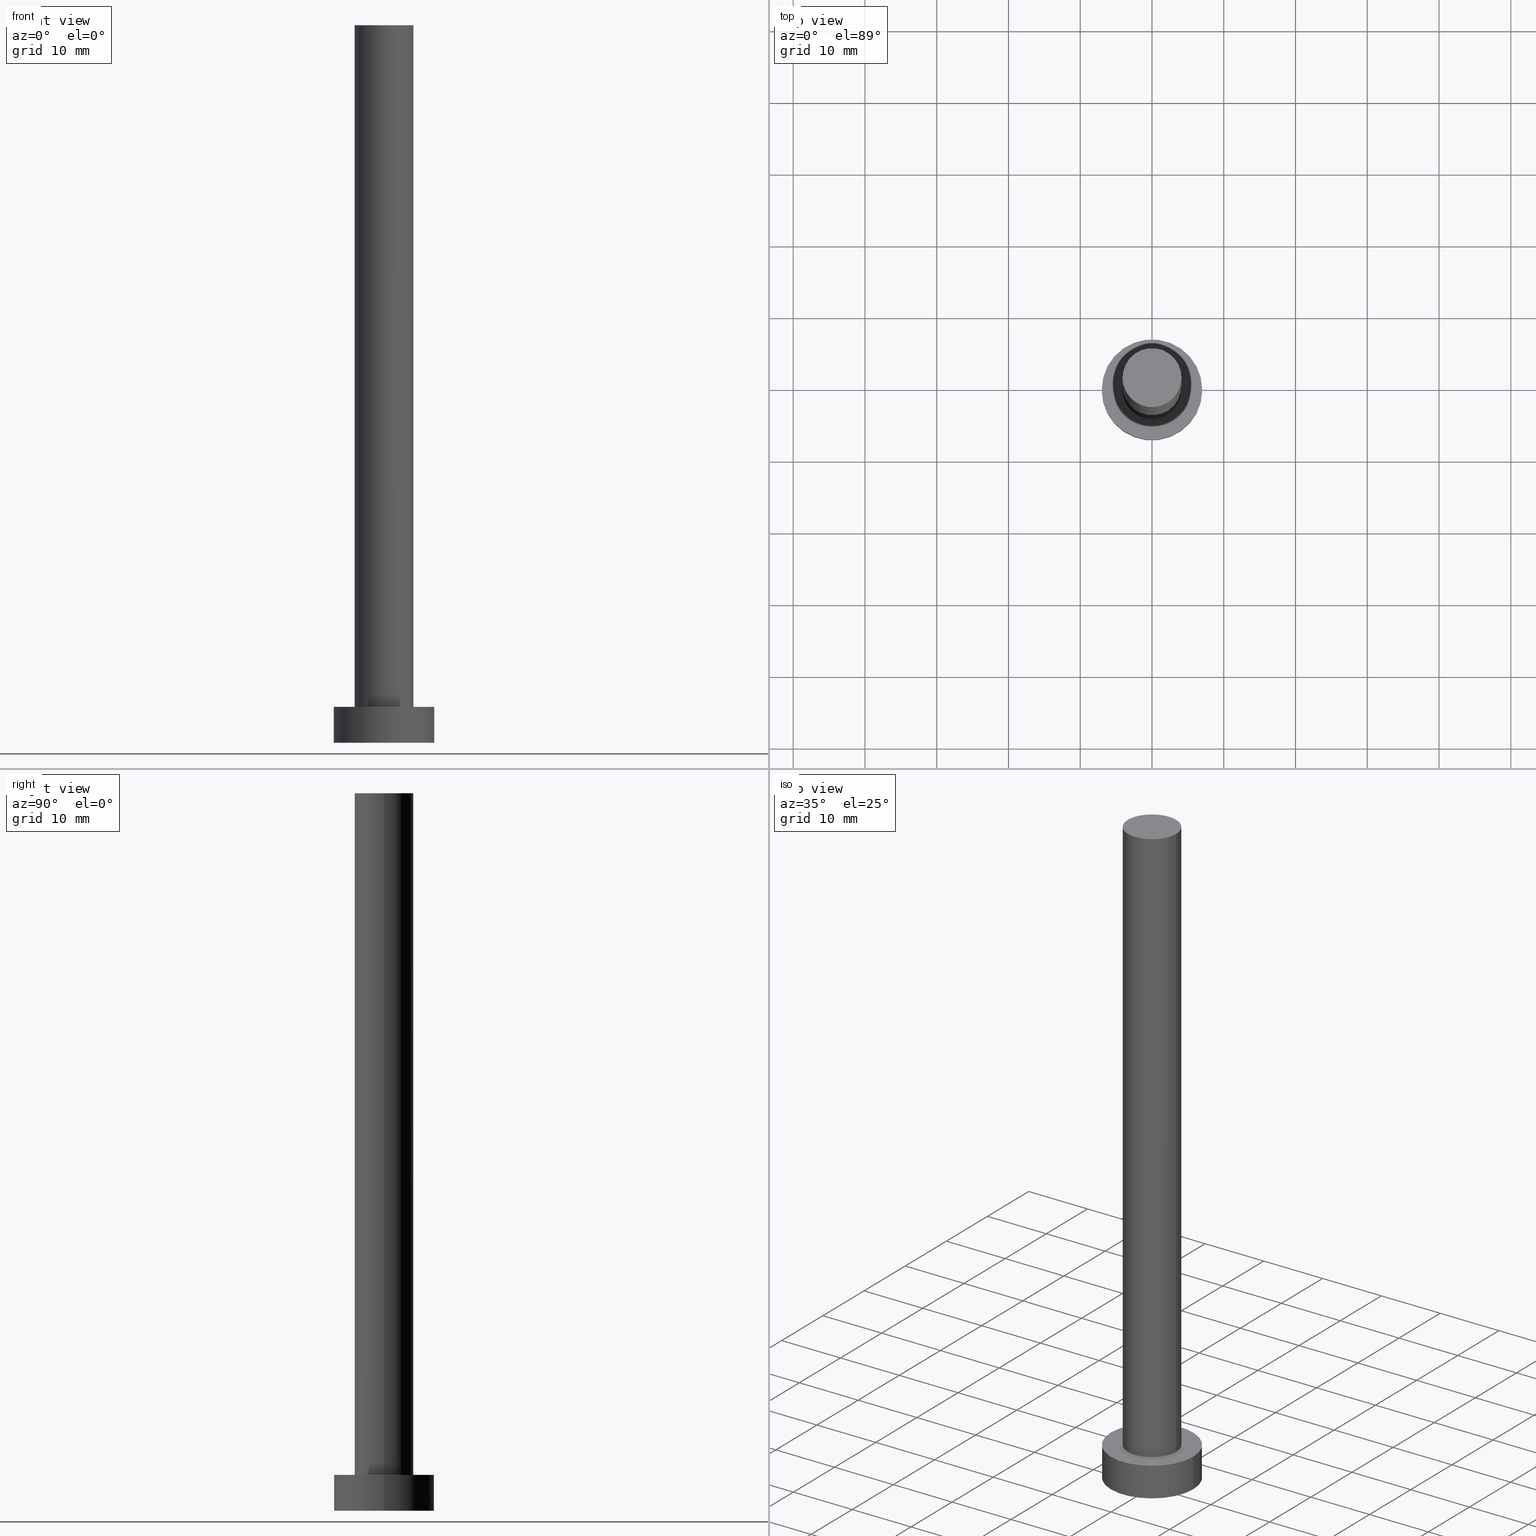
[diagram: canonical four-view strip — front | top / right | iso, engineering-drawing reading convention]
A machine part, canonical four-view strip (front | top / right | iso — engineering-drawing reading convention). The complete STEP part file that produces these views, byte-faithful:
ISO-10303-21;
HEADER;
FILE_DESCRIPTION (( 'STEP AP203' ),
    '1' );
FILE_NAME ('c706.STEP',
    '2023-02-13T10:53:21',
    ( '' ),
    ( '' ),
    'SwSTEP 2.0',
    'SolidWorks 2019',
    '' );
FILE_SCHEMA (( 'CONFIG_CONTROL_DESIGN' ));
ENDSEC;

DATA;
#1 = EDGE_LOOP ( 'NONE', ( #214, #141 ) ) ;
#2 = CARTESIAN_POINT ( 'NONE',  ( 4.099999999999999645, 5.021051876504147385E-16, 100.0000000000000000 ) ) ;
#3 = PERSON_AND_ORGANIZATION_ROLE ( 'design_owner' ) ;
#4 = PLANE ( 'NONE',  #135 ) ;
#5 = DIRECTION ( 'NONE',  ( -0.000000000000000000, -0.000000000000000000, -1.000000000000000000 ) ) ;
#6 = DIRECTION ( 'NONE',  ( -1.000000000000000000, 0.000000000000000000, 0.000000000000000000 ) ) ;
#7 = APPROVAL_PERSON_ORGANIZATION ( #121, #65, #80 ) ;
#8 = VERTEX_POINT ( 'NONE', #2 ) ;
#9 = PERSON_AND_ORGANIZATION_ROLE ( 'creator' ) ;
#10 = CC_DESIGN_SECURITY_CLASSIFICATION ( #206, ( #228 ) ) ;
#11 = APPROVAL ( #118, 'NEUR�EN�' ) ;
#12 = LINE ( 'NONE', #97, #227 ) ;
#13 = ORIENTED_EDGE ( 'NONE', *, *, #128, .T. ) ;
#14 = DIRECTION ( 'NONE',  ( 0.000000000000000000, 0.000000000000000000, 1.000000000000000000 ) ) ;
#15 = CARTESIAN_POINT ( 'NONE',  ( 4.099999999999999645, 5.021051876504147385E-16, 5.000000000000000000 ) ) ;
#16 = CARTESIAN_POINT ( 'NONE',  ( 0.000000000000000000, 0.000000000000000000, 100.0000000000000000 ) ) ;
#17 = PRODUCT_RELATED_PRODUCT_CATEGORY ( 'detail', '', ( #239 ) ) ;
#18 = CALENDAR_DATE ( 2023, 13, 2 ) ;
#19 = DIRECTION ( 'NONE',  ( -0.000000000000000000, -0.000000000000000000, -1.000000000000000000 ) ) ;
#20 = DIRECTION ( 'NONE',  ( -1.000000000000000000, 0.000000000000000000, 0.000000000000000000 ) ) ;
#21 = AXIS2_PLACEMENT_3D ( 'NONE', #63, #89, #158 ) ;
#22 = EDGE_LOOP ( 'NONE', ( #189, #245, #194, #106 ) ) ;
#23 = CALENDAR_DATE ( 2023, 13, 2 ) ;
#24 = ORIENTED_EDGE ( 'NONE', *, *, #49, .T. ) ;
#25 =( LENGTH_UNIT ( ) NAMED_UNIT ( * ) SI_UNIT ( .MILLI., .METRE. ) );
#26 = EDGE_LOOP ( 'NONE', ( #161, #29, #221, #43 ) ) ;
#27 = DATE_AND_TIME ( #23, #110 ) ;
#28 = CARTESIAN_POINT ( 'NONE',  ( -7.000000000000000000, 0.000000000000000000, 5.000000000000000000 ) ) ;
#29 = ORIENTED_EDGE ( 'NONE', *, *, #165, .T. ) ;
#30 = ADVANCED_FACE ( 'NONE', ( #179 ), #4, .F. ) ;
#31 = CIRCLE ( 'NONE', #169, 4.099999999999999645 ) ;
#32 = EDGE_CURVE ( 'NONE', #199, #224, #46, .T. ) ;
#33 = SECURITY_CLASSIFICATION_LEVEL ( 'unclassified' ) ;
#34 = DIRECTION ( 'NONE',  ( 0.000000000000000000, 0.000000000000000000, 1.000000000000000000 ) ) ;
#35 = DIRECTION ( 'NONE',  ( -0.000000000000000000, -0.000000000000000000, -1.000000000000000000 ) ) ;
#36 = CARTESIAN_POINT ( 'NONE',  ( 0.000000000000000000, 0.000000000000000000, 5.000000000000000000 ) ) ;
#37 = VECTOR ( 'NONE', #5, 1000.000000000000000 ) ;
#38 = DIRECTION ( 'NONE',  ( 1.000000000000000000, 0.000000000000000000, 0.000000000000000000 ) ) ;
#39 = AXIS2_PLACEMENT_3D ( 'NONE', #83, #19, #173 ) ;
#40 = DIRECTION ( 'NONE',  ( 1.000000000000000000, 0.000000000000000000, 0.000000000000000000 ) ) ;
#41 = DESIGN_CONTEXT ( 'detailed design', #87, 'design' ) ;
#42 = AXIS2_PLACEMENT_3D ( 'NONE', #114, #152, #145 ) ;
#43 = ORIENTED_EDGE ( 'NONE', *, *, #183, .F. ) ;
#44 = APPROVAL_ROLE ( '' ) ;
#45 = MECHANICAL_CONTEXT ( 'NONE', #96, 'mechanical' ) ;
#46 = LINE ( 'NONE', #62, #37 ) ;
#47 =( NAMED_UNIT ( * ) PLANE_ANGLE_UNIT ( ) SI_UNIT ( $, .RADIAN. ) );
#48 = AXIS2_PLACEMENT_3D ( 'NONE', #162, #67, #84 ) ;
#49 = EDGE_CURVE ( 'NONE', #199, #8, #220, .T. ) ;
#50 = ORIENTED_EDGE ( 'NONE', *, *, #143, .T. ) ;
#51 = EDGE_CURVE ( 'NONE', #224, #213, #167, .T. ) ;
#52 = AXIS2_PLACEMENT_3D ( 'NONE', #79, #34, #38 ) ;
#53 = FACE_OUTER_BOUND ( 'NONE', #142, .T. ) ;
#54 = DIRECTION ( 'NONE',  ( 1.000000000000000000, 0.000000000000000000, -0.000000000000000000 ) ) ;
#55 = EDGE_CURVE ( 'NONE', #160, #234, #209, .T. ) ;
#56 = CARTESIAN_POINT ( 'NONE',  ( 7.000000000000000000, 8.572527594031473190E-16, 0.000000000000000000 ) ) ;
#57 =( NAMED_UNIT ( * ) SI_UNIT ( $, .STERADIAN. ) SOLID_ANGLE_UNIT ( ) );
#58 = DIRECTION ( 'NONE',  ( 0.000000000000000000, 0.000000000000000000, 1.000000000000000000 ) ) ;
#59 = ORIENTED_EDGE ( 'NONE', *, *, #128, .F. ) ;
#60 = ADVANCED_FACE ( 'NONE', ( #139 ), #240, .T. ) ;
#61 = CALENDAR_DATE ( 2023, 13, 2 ) ;
#62 = CARTESIAN_POINT ( 'NONE',  ( -4.099999999999999645, 0.000000000000000000, 100.0000000000000000 ) ) ;
#63 = CARTESIAN_POINT ( 'NONE',  ( 0.000000000000000000, 0.000000000000000000, 5.000000000000000000 ) ) ;
#64 = APPROVAL_DATE_TIME ( #215, #11 ) ;
#65 = APPROVAL ( #153, 'NEUR�EN�' ) ;
#66 = DIRECTION ( 'NONE',  ( 0.000000000000000000, 0.000000000000000000, 1.000000000000000000 ) ) ;
#67 = DIRECTION ( 'NONE',  ( 0.000000000000000000, 0.000000000000000000, 1.000000000000000000 ) ) ;
#68 = ORIENTED_EDGE ( 'NONE', *, *, #32, .T. ) ;
#69 = CIRCLE ( 'NONE', #52, 4.099999999999999645 ) ;
#70 = EDGE_CURVE ( 'NONE', #213, #224, #69, .T. ) ;
#71 = DIRECTION ( 'NONE',  ( -0.000000000000000000, -0.000000000000000000, -1.000000000000000000 ) ) ;
#72 = PLANE ( 'NONE',  #82 ) ;
#73 = AXIS2_PLACEMENT_3D ( 'NONE', #205, #14, #98 ) ;
#74 = DIRECTION ( 'NONE',  ( 0.000000000000000000, 0.000000000000000000, 1.000000000000000000 ) ) ;
#75 = ORIENTED_EDGE ( 'NONE', *, *, #198, .F. ) ;
#76 = AXIS2_PLACEMENT_3D ( 'NONE', #193, #233, #6 ) ;
#77 = ADVANCED_FACE ( 'NONE', ( #250, #53 ), #72, .T. ) ;
#78 = DIRECTION ( 'NONE',  ( -0.000000000000000000, -0.000000000000000000, -1.000000000000000000 ) ) ;
#79 = CARTESIAN_POINT ( 'NONE',  ( 0.000000000000000000, 0.000000000000000000, 5.000000000000000000 ) ) ;
#80 = APPROVAL_ROLE ( '' ) ;
#81 = PERSON_AND_ORGANIZATION ( #195, #190 ) ;
#82 = AXIS2_PLACEMENT_3D ( 'NONE', #36, #74, #184 ) ;
#83 = CARTESIAN_POINT ( 'NONE',  ( 0.000000000000000000, 0.000000000000000000, 5.000000000000000000 ) ) ;
#84 = DIRECTION ( 'NONE',  ( 1.000000000000000000, 0.000000000000000000, 0.000000000000000000 ) ) ;
#85 = COORDINATED_UNIVERSAL_TIME_OFFSET ( 1, 0, .AHEAD. ) ;
#86 = DIRECTION ( 'NONE',  ( 1.000000000000000000, 0.000000000000000000, -0.000000000000000000 ) ) ;
#87 = APPLICATION_CONTEXT ( 'configuration controlled 3d designs of mechanical parts and assemblies' ) ;
#88 = APPLICATION_PROTOCOL_DEFINITION ( 'international standard', 'config_control_design', 1994, #96 ) ;
#89 = DIRECTION ( 'NONE',  ( 0.000000000000000000, 0.000000000000000000, 1.000000000000000000 ) ) ;
#90 = PERSON_AND_ORGANIZATION ( #195, #190 ) ;
#91 = DIRECTION ( 'NONE',  ( 0.000000000000000000, 0.000000000000000000, 1.000000000000000000 ) ) ;
#92 = EDGE_LOOP ( 'NONE', ( #24, #13 ) ) ;
#93 = APPROVAL_PERSON_ORGANIZATION ( #90, #11, #44 ) ;
#94 = CLOSED_SHELL ( 'NONE', ( #174, #255, #225, #77, #30, #251, #60 ) ) ;
#95 = CARTESIAN_POINT ( 'NONE',  ( 0.000000000000000000, 0.000000000000000000, 100.0000000000000000 ) ) ;
#96 = APPLICATION_CONTEXT ( 'configuration controlled 3d designs of mechanical parts and assemblies' ) ;
#97 = CARTESIAN_POINT ( 'NONE',  ( 7.000000000000000000, 8.572527594031473190E-16, 5.000000000000000000 ) ) ;
#98 = DIRECTION ( 'NONE',  ( 1.000000000000000000, 0.000000000000000000, 0.000000000000000000 ) ) ;
#99 = DIRECTION ( 'NONE',  ( 1.000000000000000000, 0.000000000000000000, 0.000000000000000000 ) ) ;
#100 = CARTESIAN_POINT ( 'NONE',  ( -7.000000000000000000, 0.000000000000000000, 0.000000000000000000 ) ) ;
#101 = DIRECTION ( 'NONE',  ( -1.000000000000000000, 0.000000000000000000, 0.000000000000000000 ) ) ;
#102 = APPROVAL_DATE_TIME ( #191, #65 ) ;
#103 = ORIENTED_EDGE ( 'NONE', *, *, #55, .T. ) ;
#104 = DATE_TIME_ROLE ( 'classification_date' ) ;
#105 = APPROVAL_DATE_TIME ( #219, #248 ) ;
#106 = ORIENTED_EDGE ( 'NONE', *, *, #112, .T. ) ;
#107 = LINE ( 'NONE', #113, #147 ) ;
#108 = VERTEX_POINT ( 'NONE', #100 ) ;
#109 = ORIENTED_EDGE ( 'NONE', *, *, #70, .T. ) ;
#110 = LOCAL_TIME ( 11, 53, 21.00000000000000000, #172 ) ;
#111 = PERSON_AND_ORGANIZATION ( #195, #190 ) ;
#112 = EDGE_CURVE ( 'NONE', #108, #133, #249, .T. ) ;
#113 = CARTESIAN_POINT ( 'NONE',  ( -7.000000000000000000, 0.000000000000000000, 5.000000000000000000 ) ) ;
#114 = CARTESIAN_POINT ( 'NONE',  ( 0.000000000000000000, 0.000000000000000000, 0.000000000000000000 ) ) ;
#115 = COORDINATED_UNIVERSAL_TIME_OFFSET ( 1, 0, .AHEAD. ) ;
#116 = LOCAL_TIME ( 11, 53, 21.00000000000000000, #85 ) ;
#117 = EDGE_CURVE ( 'NONE', #133, #108, #181, .T. ) ;
#118 = APPROVAL_STATUS ( 'not_yet_approved' ) ;
#119 = PERSON_AND_ORGANIZATION ( #195, #190 ) ;
#120 = EDGE_LOOP ( 'NONE', ( #59, #163, #109, #175 ) ) ;
#121 = PERSON_AND_ORGANIZATION ( #195, #190 ) ;
#122 = CYLINDRICAL_SURFACE ( 'NONE', #178, 4.099999999999999645 ) ;
#123 = CC_DESIGN_PERSON_AND_ORGANIZATION_ASSIGNMENT ( #81, #151, ( #171 ) ) ;
#124 = DIRECTION ( 'NONE',  ( 1.000000000000000000, 0.000000000000000000, 0.000000000000000000 ) ) ;
#125 = DIRECTION ( 'NONE',  ( 0.000000000000000000, 0.000000000000000000, 1.000000000000000000 ) ) ;
#126 = CARTESIAN_POINT ( 'NONE',  ( 0.000000000000000000, 0.000000000000000000, 5.000000000000000000 ) ) ;
#127 = CC_DESIGN_APPROVAL ( #11, ( #228 ) ) ;
#128 = EDGE_CURVE ( 'NONE', #8, #199, #31, .T. ) ;
#129 = CARTESIAN_POINT ( 'NONE',  ( -4.099999999999999645, 0.000000000000000000, 100.0000000000000000 ) ) ;
#130 = CARTESIAN_POINT ( 'NONE',  ( 0.000000000000000000, 0.000000000000000000, 5.000000000000000000 ) ) ;
#131 = DIRECTION ( 'NONE',  ( 0.000000000000000000, 0.000000000000000000, 1.000000000000000000 ) ) ;
#132 = DIRECTION ( 'NONE',  ( -0.000000000000000000, -0.000000000000000000, -1.000000000000000000 ) ) ;
#133 = VERTEX_POINT ( 'NONE', #56 ) ;
#134 = CC_DESIGN_DATE_AND_TIME_ASSIGNMENT ( #27, #104, ( #206 ) ) ;
#135 = AXIS2_PLACEMENT_3D ( 'NONE', #243, #66, #86 ) ;
#136 = ORIENTED_EDGE ( 'NONE', *, *, #117, .F. ) ;
#137 =( GEOMETRIC_REPRESENTATION_CONTEXT ( 3 ) GLOBAL_UNCERTAINTY_ASSIGNED_CONTEXT ( ( #229 ) ) GLOBAL_UNIT_ASSIGNED_CONTEXT ( ( #25, #47, #57 ) ) REPRESENTATION_CONTEXT ( 'NONE', 'WORKASPACE' ) );
#138 = FACE_OUTER_BOUND ( 'NONE', #26, .T. ) ;
#139 = FACE_OUTER_BOUND ( 'NONE', #92, .T. ) ;
#140 = PERSON_AND_ORGANIZATION ( #195, #190 ) ;
#141 = ORIENTED_EDGE ( 'NONE', *, *, #70, .F. ) ;
#142 = EDGE_LOOP ( 'NONE', ( #50, #103 ) ) ;
#143 = EDGE_CURVE ( 'NONE', #234, #160, #200, .T. ) ;
#144 = CC_DESIGN_APPROVAL ( #65, ( #206 ) ) ;
#145 = DIRECTION ( 'NONE',  ( 1.000000000000000000, 0.000000000000000000, 0.000000000000000000 ) ) ;
#146 = CYLINDRICAL_SURFACE ( 'NONE', #76, 4.099999999999999645 ) ;
#147 = VECTOR ( 'NONE', #71, 1000.000000000000000 ) ;
#148 = AXIS2_PLACEMENT_3D ( 'NONE', #238, #58, #99 ) ;
#149 = CC_DESIGN_PERSON_AND_ORGANIZATION_ASSIGNMENT ( #202, #223, ( #228 ) ) ;
#150 = SHAPE_DEFINITION_REPRESENTATION ( #196, #232 ) ;
#151 = PERSON_AND_ORGANIZATION_ROLE ( 'creator' ) ;
#152 = DIRECTION ( 'NONE',  ( 0.000000000000000000, 0.000000000000000000, 1.000000000000000000 ) ) ;
#153 = APPROVAL_STATUS ( 'not_yet_approved' ) ;
#154 = LOCAL_TIME ( 11, 53, 21.00000000000000000, #115 ) ;
#155 = ORIENTED_EDGE ( 'NONE', *, *, #112, .F. ) ;
#156 = CALENDAR_DATE ( 2023, 13, 2 ) ;
#157 = CC_DESIGN_PERSON_AND_ORGANIZATION_ASSIGNMENT ( #140, #9, ( #228 ) ) ;
#158 = DIRECTION ( 'NONE',  ( 1.000000000000000000, 0.000000000000000000, 0.000000000000000000 ) ) ;
#159 = COORDINATED_UNIVERSAL_TIME_OFFSET ( 1, 0, .AHEAD. ) ;
#160 = VERTEX_POINT ( 'NONE', #253 ) ;
#161 = ORIENTED_EDGE ( 'NONE', *, *, #55, .F. ) ;
#162 = CARTESIAN_POINT ( 'NONE',  ( 0.000000000000000000, 0.000000000000000000, 5.000000000000000000 ) ) ;
#163 = ORIENTED_EDGE ( 'NONE', *, *, #198, .T. ) ;
#164 = AXIS2_PLACEMENT_3D ( 'NONE', #126, #131, #40 ) ;
#165 = EDGE_CURVE ( 'NONE', #160, #133, #12, .T. ) ;
#166 = PERSON_AND_ORGANIZATION_ROLE ( 'classification_officer' ) ;
#167 = CIRCLE ( 'NONE', #48, 4.099999999999999645 ) ;
#168 = FACE_OUTER_BOUND ( 'NONE', #120, .T. ) ;
#169 = AXIS2_PLACEMENT_3D ( 'NONE', #16, #226, #230 ) ;
#170 = FACE_OUTER_BOUND ( 'NONE', #22, .T. ) ;
#171 = PRODUCT_DEFINITION ( 'NEZN�M�', '', #228, #41 ) ;
#172 = COORDINATED_UNIVERSAL_TIME_OFFSET ( 1, 0, .AHEAD. ) ;
#173 = DIRECTION ( 'NONE',  ( -1.000000000000000000, 0.000000000000000000, 0.000000000000000000 ) ) ;
#174 = ADVANCED_FACE ( 'NONE', ( #168 ), #146, .T. ) ;
#175 = ORIENTED_EDGE ( 'NONE', *, *, #32, .F. ) ;
#176 = CARTESIAN_POINT ( 'NONE',  ( 0.000000000000000000, 0.000000000000000000, 100.0000000000000000 ) ) ;
#177 = CALENDAR_DATE ( 2023, 13, 2 ) ;
#178 = AXIS2_PLACEMENT_3D ( 'NONE', #176, #132, #20 ) ;
#179 = FACE_OUTER_BOUND ( 'NONE', #244, .T. ) ;
#180 = ORIENTED_EDGE ( 'NONE', *, *, #51, .T. ) ;
#181 = CIRCLE ( 'NONE', #73, 7.000000000000000000 ) ;
#182 = AXIS2_PLACEMENT_3D ( 'NONE', #95, #125, #54 ) ;
#183 = EDGE_CURVE ( 'NONE', #234, #108, #107, .T. ) ;
#184 = DIRECTION ( 'NONE',  ( 1.000000000000000000, 0.000000000000000000, -0.000000000000000000 ) ) ;
#185 = CC_DESIGN_APPROVAL ( #248, ( #171 ) ) ;
#186 = CYLINDRICAL_SURFACE ( 'NONE', #241, 7.000000000000000000 ) ;
#187 = APPROVAL_STATUS ( 'not_yet_approved' ) ;
#188 = ORIENTED_EDGE ( 'NONE', *, *, #49, .F. ) ;
#189 = ORIENTED_EDGE ( 'NONE', *, *, #165, .F. ) ;
#190 = ORGANIZATION ( 'NEUR�EN�', 'NEUR�EN�', '' ) ;
#191 = DATE_AND_TIME ( #18, #154 ) ;
#192 = COORDINATED_UNIVERSAL_TIME_OFFSET ( 1, 0, .AHEAD. ) ;
#193 = CARTESIAN_POINT ( 'NONE',  ( 0.000000000000000000, 0.000000000000000000, 100.0000000000000000 ) ) ;
#194 = ORIENTED_EDGE ( 'NONE', *, *, #183, .T. ) ;
#195 = PERSON ( 'NEUR�EN�', 'NEUR�EN�', 'NEUR�EN�', ('NEUR�EN�'), ('NEUR�EN�'), ('NEUR�EN�') ) ;
#196 = PRODUCT_DEFINITION_SHAPE ( 'NONE', 'NONE',  #171 ) ;
#197 = FACE_OUTER_BOUND ( 'NONE', #236, .T. ) ;
#198 = EDGE_CURVE ( 'NONE', #8, #213, #252, .T. ) ;
#199 = VERTEX_POINT ( 'NONE', #129 ) ;
#200 = CIRCLE ( 'NONE', #164, 7.000000000000000000 ) ;
#201 = CC_DESIGN_DATE_AND_TIME_ASSIGNMENT ( #242, #235, ( #171 ) ) ;
#202 = PERSON_AND_ORGANIZATION ( #195, #190 ) ;
#203 = CC_DESIGN_PERSON_AND_ORGANIZATION_ASSIGNMENT ( #111, #166, ( #206 ) ) ;
#204 = AXIS2_PLACEMENT_3D ( 'NONE', #216, #91, #124 ) ;
#205 = CARTESIAN_POINT ( 'NONE',  ( 0.000000000000000000, 0.000000000000000000, 0.000000000000000000 ) ) ;
#206 = SECURITY_CLASSIFICATION ( '', '', #33 ) ;
#207 = CARTESIAN_POINT ( 'NONE',  ( -4.099999999999999645, 0.000000000000000000, 5.000000000000000000 ) ) ;
#208 = CARTESIAN_POINT ( 'NONE',  ( 4.099999999999999645, 5.021051876504147385E-16, 100.0000000000000000 ) ) ;
#209 = CIRCLE ( 'NONE', #21, 7.000000000000000000 ) ;
#210 = DIRECTION ( 'NONE',  ( -0.000000000000000000, -0.000000000000000000, -1.000000000000000000 ) ) ;
#211 = LOCAL_TIME ( 11, 53, 21.00000000000000000, #159 ) ;
#212 = APPROVAL_ROLE ( '' ) ;
#213 = VERTEX_POINT ( 'NONE', #15 ) ;
#214 = ORIENTED_EDGE ( 'NONE', *, *, #51, .F. ) ;
#215 = DATE_AND_TIME ( #61, #211 ) ;
#216 = CARTESIAN_POINT ( 'NONE',  ( 0.000000000000000000, 0.000000000000000000, 100.0000000000000000 ) ) ;
#217 = VECTOR ( 'NONE', #35, 1000.000000000000000 ) ;
#218 = CYLINDRICAL_SURFACE ( 'NONE', #39, 7.000000000000000000 ) ;
#219 = DATE_AND_TIME ( #156, #116 ) ;
#220 = CIRCLE ( 'NONE', #204, 4.099999999999999645 ) ;
#221 = ORIENTED_EDGE ( 'NONE', *, *, #117, .T. ) ;
#222 = LOCAL_TIME ( 11, 53, 21.00000000000000000, #192 ) ;
#223 = PERSON_AND_ORGANIZATION_ROLE ( 'design_supplier' ) ;
#224 = VERTEX_POINT ( 'NONE', #207 ) ;
#225 = ADVANCED_FACE ( 'NONE', ( #170 ), #186, .T. ) ;
#226 = DIRECTION ( 'NONE',  ( 0.000000000000000000, 0.000000000000000000, 1.000000000000000000 ) ) ;
#227 = VECTOR ( 'NONE', #78, 1000.000000000000000 ) ;
#228 = PRODUCT_DEFINITION_FORMATION_WITH_SPECIFIED_SOURCE ( 'LIBOVOLN�', '', #239, .NOT_KNOWN. ) ;
#229 = UNCERTAINTY_MEASURE_WITH_UNIT (LENGTH_MEASURE( 1.000000000000000082E-05 ), #25, 'distance_accuracy_value', 'NONE');
#230 = DIRECTION ( 'NONE',  ( 1.000000000000000000, 0.000000000000000000, 0.000000000000000000 ) ) ;
#231 = APPLICATION_PROTOCOL_DEFINITION ( 'international standard', 'config_control_design', 1994, #87 ) ;
#232 = ADVANCED_BREP_SHAPE_REPRESENTATION ( 'c706', ( #246, #148 ), #137 ) ;
#233 = DIRECTION ( 'NONE',  ( -0.000000000000000000, -0.000000000000000000, -1.000000000000000000 ) ) ;
#234 = VERTEX_POINT ( 'NONE', #28 ) ;
#235 = DATE_TIME_ROLE ( 'creation_date' ) ;
#236 = EDGE_LOOP ( 'NONE', ( #75, #188, #68, #180 ) ) ;
#237 = CC_DESIGN_PERSON_AND_ORGANIZATION_ASSIGNMENT ( #254, #3, ( #239 ) ) ;
#238 = CARTESIAN_POINT ( 'NONE',  ( 0.000000000000000000, 0.000000000000000000, 0.000000000000000000 ) ) ;
#239 = PRODUCT ( 'c706', 'c706', '', ( #45 ) ) ;
#240 = PLANE ( 'NONE',  #182 ) ;
#241 = AXIS2_PLACEMENT_3D ( 'NONE', #130, #210, #101 ) ;
#242 = DATE_AND_TIME ( #177, #222 ) ;
#243 = CARTESIAN_POINT ( 'NONE',  ( 0.000000000000000000, 0.000000000000000000, 0.000000000000000000 ) ) ;
#244 = EDGE_LOOP ( 'NONE', ( #155, #136 ) ) ;
#245 = ORIENTED_EDGE ( 'NONE', *, *, #143, .F. ) ;
#246 = MANIFOLD_SOLID_BREP ( 'P�idat vysunut�m3', #94 ) ;
#247 = APPROVAL_PERSON_ORGANIZATION ( #119, #248, #212 ) ;
#248 = APPROVAL ( #187, 'NEUR�EN�' ) ;
#249 = CIRCLE ( 'NONE', #42, 7.000000000000000000 ) ;
#250 = FACE_BOUND ( 'NONE', #1, .T. ) ;
#251 = ADVANCED_FACE ( 'NONE', ( #197 ), #122, .T. ) ;
#252 = LINE ( 'NONE', #208, #217 ) ;
#253 = CARTESIAN_POINT ( 'NONE',  ( 7.000000000000000000, 8.572527594031473190E-16, 5.000000000000000000 ) ) ;
#254 = PERSON_AND_ORGANIZATION ( #195, #190 ) ;
#255 = ADVANCED_FACE ( 'NONE', ( #138 ), #218, .T. ) ;
ENDSEC;
END-ISO-10303-21;
